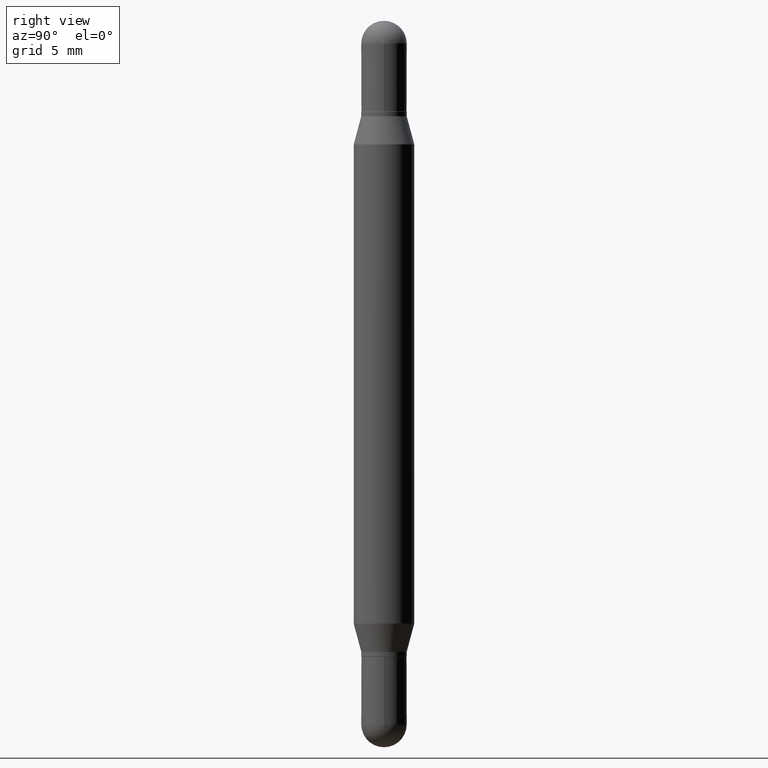
[diagram: clean part render]
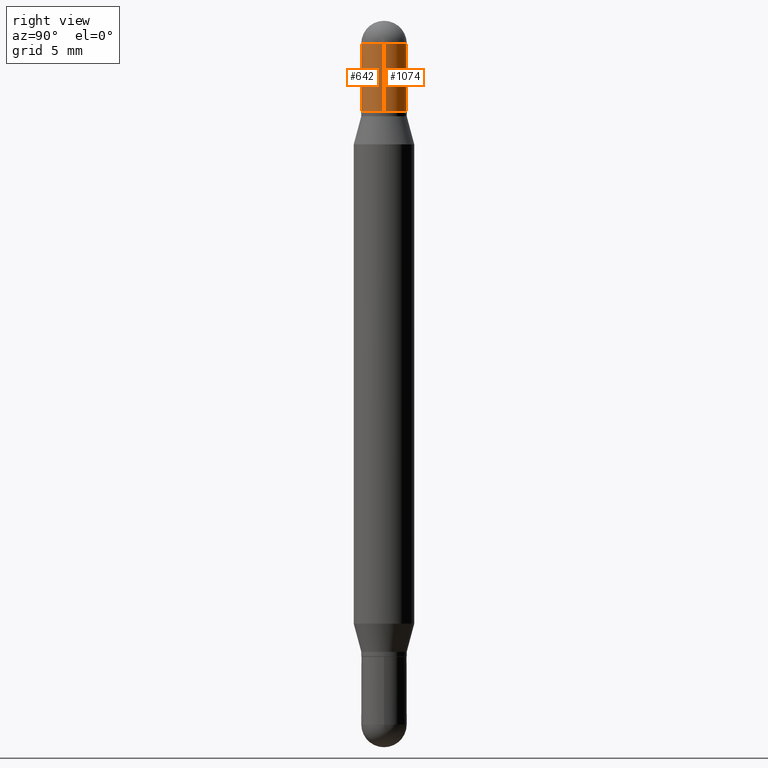
[diagram: same view with one multi-face feature highlighted, each face labeled with its STEP entity id]
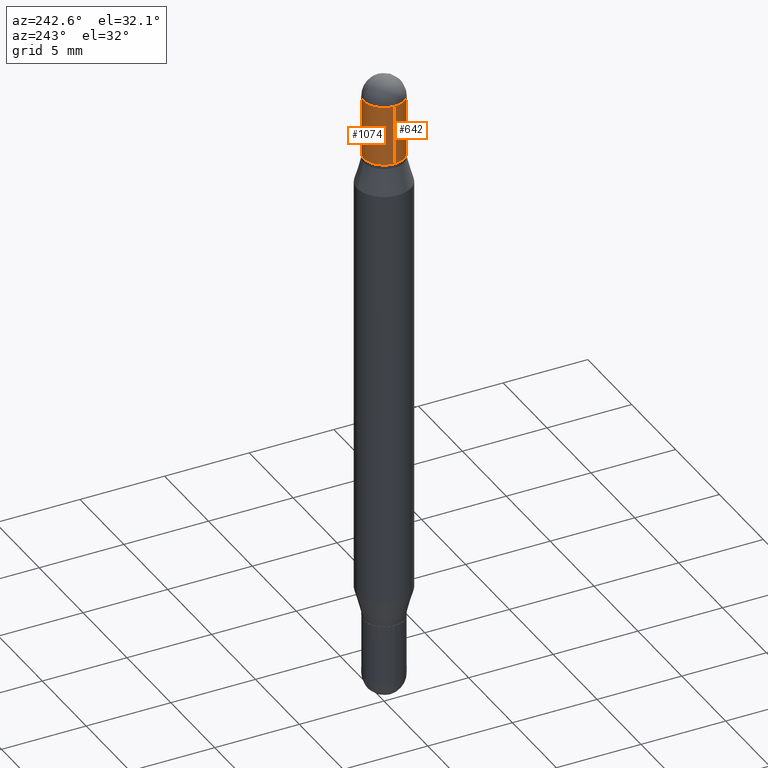
[diagram: same view with one multi-face feature highlighted, each face labeled with its STEP entity id]
A machine part, right view. The highlighted faces form ONE feature: a constant-radius fillet chain: 2 tangent blend faces with common blend radius 1.1913 mm. The faces share edges in the B-rep.
A second angle (auxiliary view) of the same feature is appended — it is thin or edge-on in the first view.
Their STEP definitions:
[1] entity #1074 (Cylinder):
#31 = AXIS2_PLACEMENT_3D ( 'NONE', #803, #51, #213 ) ;
#51 = DIRECTION ( 'NONE',  ( 2.445468806185136597E-29, 3.479614466977828254E-15, 1.000000000000000000 ) ) ;
#87 = VERTEX_POINT ( 'NONE', #1068 ) ;
#89 = CARTESIAN_POINT ( 'NONE',  ( -0.04689999999999999725, -4.906564498270247118E-15, -1.500000000000000444 ) ) ;
#118 = CARTESIAN_POINT ( 'NONE',  ( 3.553510722267622201E-29, -1.720940724002502970E-16, -0.04690000000000053154 ) ) ;
#136 = VERTEX_POINT ( 'NONE', #491 ) ;
#213 = DIRECTION ( 'NONE',  ( 1.000000000000000000, -6.982962677686266711E-15, 0.000000000000000000 ) ) ;
#289 = FACE_OUTER_BOUND ( 'NONE', #1113, .T. ) ;
#299 = CARTESIAN_POINT ( 'NONE',  ( 3.553510722267622201E-29, -1.720940724002502970E-16, -0.04690000000000053154 ) ) ;
#364 = DIRECTION ( 'NONE',  ( 2.445468806185136597E-29, 3.479614466977828254E-15, 1.000000000000000000 ) ) ;
#373 = AXIS2_PLACEMENT_3D ( 'NONE', #299, #364, #793 ) ;
#384 = CYLINDRICAL_SURFACE ( 'NONE', #902, 0.04689999999999999725 ) ;
#391 = DIRECTION ( 'NONE',  ( 1.000000000000000000, -6.982962677686277755E-15, 0.000000000000000000 ) ) ;
#397 = ORIENTED_EDGE ( 'NONE', *, *, #931, .F. ) ;
#408 = CARTESIAN_POINT ( 'NONE',  ( -0.04689999999999999725, -9.408370971656158891E-17, -0.1870000000000002216 ) ) ;
#428 = CIRCLE ( 'NONE', #373, 0.04689999999999999725 ) ;
#441 = EDGE_CURVE ( 'NONE', #728, #1002, #974, .T. ) ;
#460 = ORIENTED_EDGE ( 'NONE', *, *, #521, .F. ) ;
#463 = DIRECTION ( 'NONE',  ( -2.445468806185136877E-29, -3.479614466977828648E-15, -1.000000000000000000 ) ) ;
#468 = CIRCLE ( 'NONE', #31, 0.04689999999999999725 ) ;
#490 = VECTOR ( 'NONE', #463, 39.37007874015748143 ) ;
#491 = CARTESIAN_POINT ( 'NONE',  ( 0.04689999999999999725, -9.870890088073285070E-16, -0.1870000000000002216 ) ) ;
#521 = EDGE_CURVE ( 'NONE', #1002, #87, #428, .T. ) ;
#550 = LINE ( 'NONE', #884, #490 ) ;
#639 = CARTESIAN_POINT ( 'NONE',  ( 3.217573560955207797E-16, 0.04689999999999990010, -0.04690000000000069114 ) ) ;
#679 = EDGE_CURVE ( 'NONE', #728, #136, #550, .T. ) ;
#728 = VERTEX_POINT ( 'NONE', #744 ) ;
#744 = CARTESIAN_POINT ( 'NONE',  ( 0.04689999999999999725, -7.433420153955320943E-16, -0.04690000000000053154 ) ) ;
#751 = ORIENTED_EDGE ( 'NONE', *, *, #1046, .T. ) ;
#776 = ORIENTED_EDGE ( 'NONE', *, *, #679, .T. ) ;
#793 = DIRECTION ( 'NONE',  ( 1.000000000000000000, -6.982962677686266711E-15, 0.000000000000000000 ) ) ;
#794 = DIRECTION ( 'NONE',  ( 2.445468806185136597E-29, 3.479614466977828254E-15, 1.000000000000000000 ) ) ;
#803 = CARTESIAN_POINT ( 'NONE',  ( 3.210900542521084585E-29, -6.595880592238425060E-16, -0.1870000000000002216 ) ) ;
#805 = VERTEX_POINT ( 'NONE', #408 ) ;
#831 = LINE ( 'NONE', #89, #940 ) ;
#884 = CARTESIAN_POINT ( 'NONE',  ( 0.04689999999999999725, -5.555822803949218252E-15, -1.500000000000000444 ) ) ;
#902 = AXIS2_PLACEMENT_3D ( 'NONE', #975, #1082, #391 ) ;
#931 = EDGE_CURVE ( 'NONE', #87, #805, #831, .T. ) ;
#940 = VECTOR ( 'NONE', #949, 39.37007874015748143 ) ;
#949 = DIRECTION ( 'NONE',  ( -2.445468806185136877E-29, -3.479614466977828648E-15, -1.000000000000000000 ) ) ;
#961 = DIRECTION ( 'NONE',  ( 1.000000000000000000, -6.982962677686266711E-15, 0.000000000000000000 ) ) ;
#974 = CIRCLE ( 'NONE', #1097, 0.04689999999999999725 ) ;
#975 = CARTESIAN_POINT ( 'NONE',  ( 0.000000000000000000, -5.228321854365732350E-15, -1.500000000000000444 ) ) ;
#976 = ORIENTED_EDGE ( 'NONE', *, *, #441, .F. ) ;
#1002 = VERTEX_POINT ( 'NONE', #639 ) ;
#1046 = EDGE_CURVE ( 'NONE', #136, #805, #468, .T. ) ;
#1068 = CARTESIAN_POINT ( 'NONE',  ( -0.04689999999999999725, -9.408370971656128076E-17, -0.04690000000000053154 ) ) ;
#1074 = ADVANCED_FACE ( 'NONE', ( #289 ), #384, .T. ) ;
#1082 = DIRECTION ( 'NONE',  ( -2.445468806185136597E-29, -3.479614466977828254E-15, -1.000000000000000000 ) ) ;
#1097 = AXIS2_PLACEMENT_3D ( 'NONE', #118, #794, #961 ) ;
#1113 = EDGE_LOOP ( 'NONE', ( #397, #460, #976, #776, #751 ) ) ;
[2] entity #642 (Cylinder):
#18 = ORIENTED_EDGE ( 'NONE', *, *, #1043, .F. ) ;
#41 = FACE_OUTER_BOUND ( 'NONE', #389, .T. ) ;
#87 = VERTEX_POINT ( 'NONE', #1068 ) ;
#89 = CARTESIAN_POINT ( 'NONE',  ( -0.04689999999999999725, -4.906564498270247118E-15, -1.500000000000000444 ) ) ;
#127 = EDGE_CURVE ( 'NONE', #805, #136, #369, .T. ) ;
#136 = VERTEX_POINT ( 'NONE', #491 ) ;
#141 = CARTESIAN_POINT ( 'NONE',  ( 3.553510722267622201E-29, -1.720940724002502970E-16, -0.04690000000000053154 ) ) ;
#234 = DIRECTION ( 'NONE',  ( -2.445468806185136597E-29, -3.479614466977828254E-15, -1.000000000000000000 ) ) ;
#235 = DIRECTION ( 'NONE',  ( 2.445468806185136597E-29, 3.479614466977828254E-15, 1.000000000000000000 ) ) ;
#236 = DIRECTION ( 'NONE',  ( 2.445468806185136597E-29, 3.479614466977828254E-15, 1.000000000000000000 ) ) ;
#298 = VERTEX_POINT ( 'NONE', #876 ) ;
#357 = CIRCLE ( 'NONE', #505, 0.04689999999999999725 ) ;
#369 = CIRCLE ( 'NONE', #395, 0.04689999999999999725 ) ;
#389 = EDGE_LOOP ( 'NONE', ( #834, #797, #567, #624, #18 ) ) ;
#395 = AXIS2_PLACEMENT_3D ( 'NONE', #733, #236, #921 ) ;
#399 = AXIS2_PLACEMENT_3D ( 'NONE', #1070, #234, #756 ) ;
#408 = CARTESIAN_POINT ( 'NONE',  ( -0.04689999999999999725, -9.408370971656158891E-17, -0.1870000000000002216 ) ) ;
#455 = DIRECTION ( 'NONE',  ( 1.000000000000000000, -6.982962677686266711E-15, 0.000000000000000000 ) ) ;
#459 = DIRECTION ( 'NONE',  ( 1.000000000000000000, -6.982962677686266711E-15, 0.000000000000000000 ) ) ;
#463 = DIRECTION ( 'NONE',  ( -2.445468806185136877E-29, -3.479614466977828648E-15, -1.000000000000000000 ) ) ;
#490 = VECTOR ( 'NONE', #463, 39.37007874015748143 ) ;
#491 = CARTESIAN_POINT ( 'NONE',  ( 0.04689999999999999725, -9.870890088073285070E-16, -0.1870000000000002216 ) ) ;
#505 = AXIS2_PLACEMENT_3D ( 'NONE', #1061, #891, #455 ) ;
#550 = LINE ( 'NONE', #884, #490 ) ;
#564 = EDGE_CURVE ( 'NONE', #87, #298, #357, .T. ) ;
#567 = ORIENTED_EDGE ( 'NONE', *, *, #127, .T. ) ;
#624 = ORIENTED_EDGE ( 'NONE', *, *, #679, .F. ) ;
#642 = ADVANCED_FACE ( 'NONE', ( #41 ), #715, .T. ) ;
#679 = EDGE_CURVE ( 'NONE', #728, #136, #550, .T. ) ;
#715 = CYLINDRICAL_SURFACE ( 'NONE', #399, 0.04689999999999999725 ) ;
#724 = CIRCLE ( 'NONE', #847, 0.04689999999999999725 ) ;
#728 = VERTEX_POINT ( 'NONE', #744 ) ;
#733 = CARTESIAN_POINT ( 'NONE',  ( 3.210900542521084585E-29, -6.595880592238425060E-16, -0.1870000000000002216 ) ) ;
#744 = CARTESIAN_POINT ( 'NONE',  ( 0.04689999999999999725, -7.433420153955320943E-16, -0.04690000000000053154 ) ) ;
#756 = DIRECTION ( 'NONE',  ( 1.000000000000000000, -6.982962677686277755E-15, 0.000000000000000000 ) ) ;
#797 = ORIENTED_EDGE ( 'NONE', *, *, #931, .T. ) ;
#805 = VERTEX_POINT ( 'NONE', #408 ) ;
#831 = LINE ( 'NONE', #89, #940 ) ;
#834 = ORIENTED_EDGE ( 'NONE', *, *, #564, .F. ) ;
#847 = AXIS2_PLACEMENT_3D ( 'NONE', #141, #235, #459 ) ;
#876 = CARTESIAN_POINT ( 'NONE',  ( -3.275009495834508474E-16, -0.04690000000000024011, -0.04690000000000036501 ) ) ;
#884 = CARTESIAN_POINT ( 'NONE',  ( 0.04689999999999999725, -5.555822803949218252E-15, -1.500000000000000444 ) ) ;
#891 = DIRECTION ( 'NONE',  ( 2.445468806185136597E-29, 3.479614466977828254E-15, 1.000000000000000000 ) ) ;
#921 = DIRECTION ( 'NONE',  ( 1.000000000000000000, -6.982962677686266711E-15, 0.000000000000000000 ) ) ;
#931 = EDGE_CURVE ( 'NONE', #87, #805, #831, .T. ) ;
#940 = VECTOR ( 'NONE', #949, 39.37007874015748143 ) ;
#949 = DIRECTION ( 'NONE',  ( -2.445468806185136877E-29, -3.479614466977828648E-15, -1.000000000000000000 ) ) ;
#1043 = EDGE_CURVE ( 'NONE', #298, #728, #724, .T. ) ;
#1061 = CARTESIAN_POINT ( 'NONE',  ( 3.553510722267622201E-29, -1.720940724002502970E-16, -0.04690000000000053154 ) ) ;
#1068 = CARTESIAN_POINT ( 'NONE',  ( -0.04689999999999999725, -9.408370971656128076E-17, -0.04690000000000053154 ) ) ;
#1070 = CARTESIAN_POINT ( 'NONE',  ( 0.000000000000000000, -5.228321854365732350E-15, -1.500000000000000444 ) ) ;